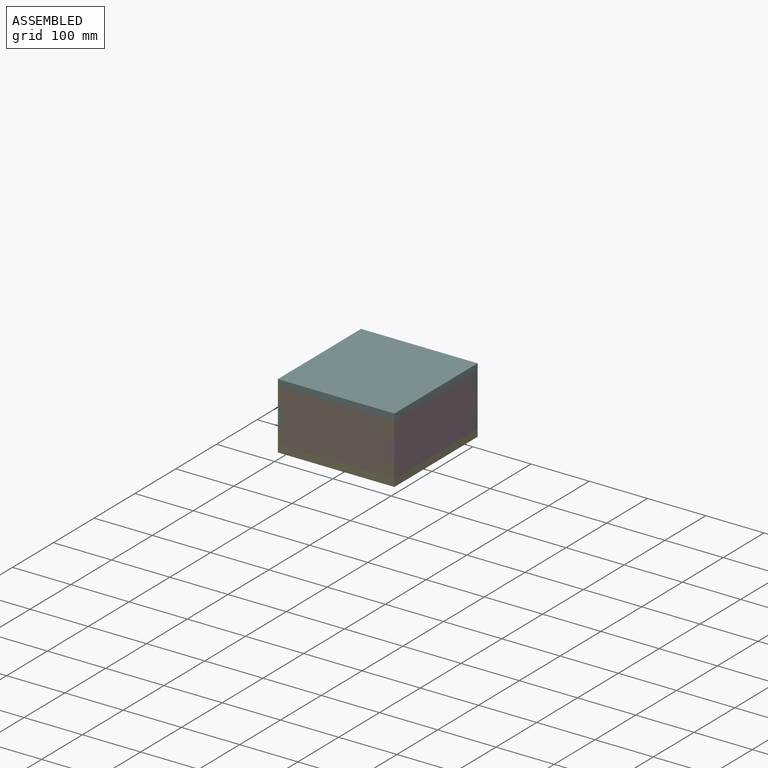
[diagram: assembled view]
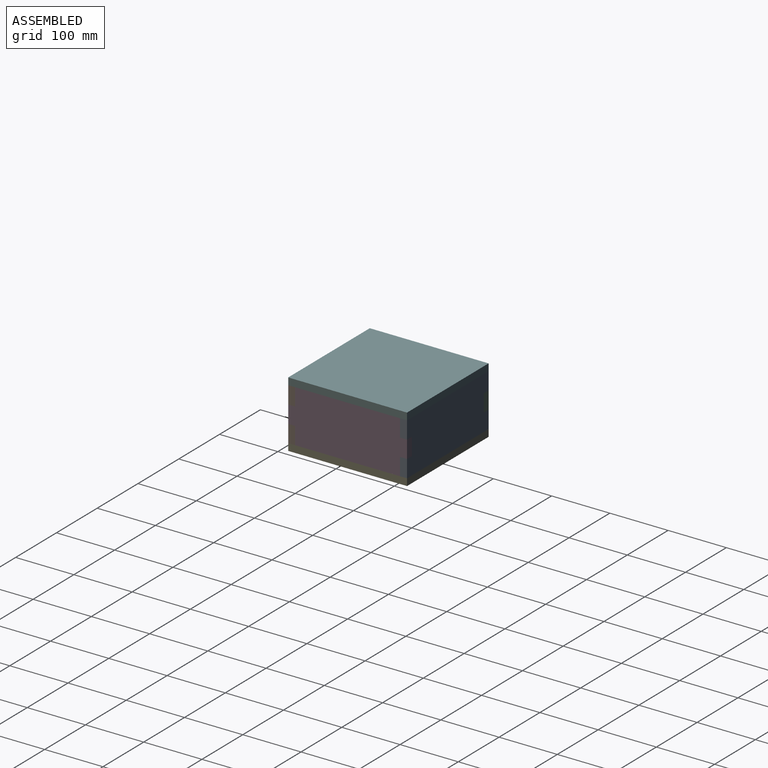
[diagram: assembled view, second angle]
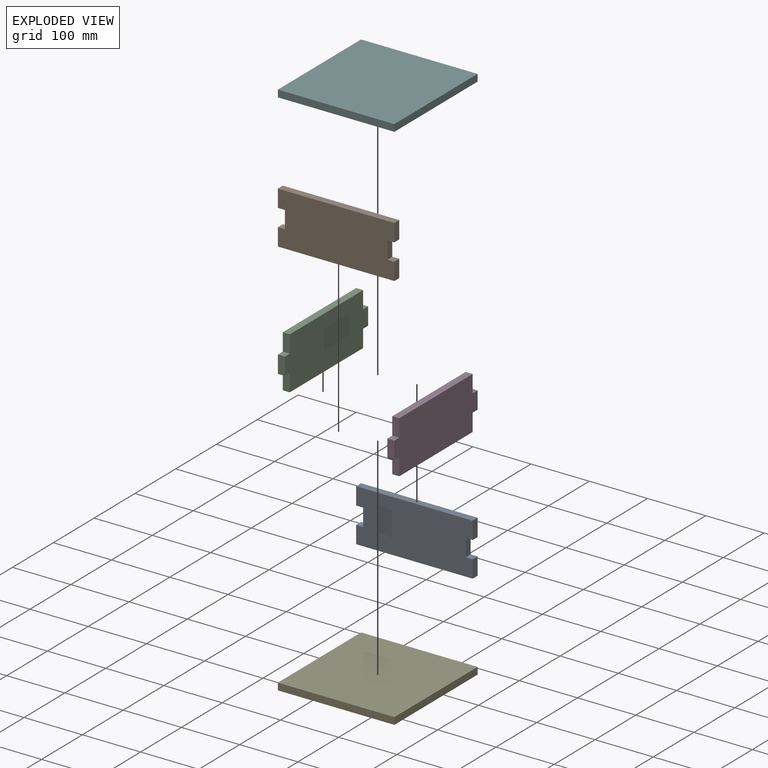
[diagram: exploded view]
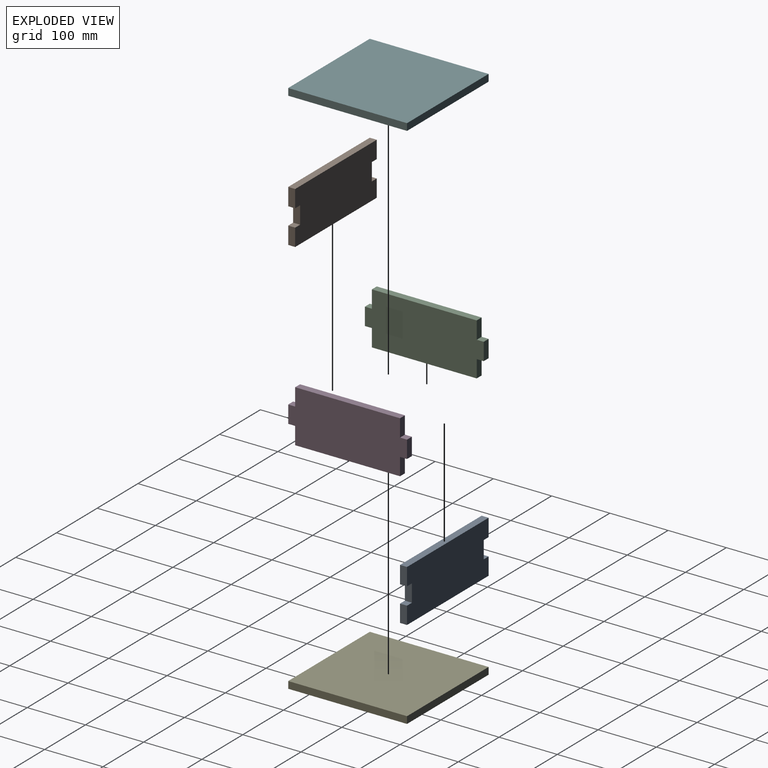
[diagram: exploded view, second angle]
ASSEMBLY  parts=6 mates=5
PART A: 14 faces, bbox 200x12x90 mm
  f0: plane 12x12mm, normal (0,0,1), area 144mm2, adj f1,f11,f12,f13
  f1: plane 30x12mm, normal (1,0,0), area 360mm2, adj f0,f2,f12,f13
  f2: plane 12x12mm, normal (0,0,-1), area 144mm2, adj f1,f3,f12,f13
  f3: plane 30x12mm, normal (1,0,0), area 360mm2, adj f2,f4,f12,f13
  f4: plane 200x12mm, normal (0,0,1), area 2400mm2, adj f3,f5,f12,f13
  f5: plane 30x12mm, normal (-1,0,0), area 360mm2, adj f4,f6,f12,f13
  f6: plane 12x12mm, normal (0,0,-1), area 144mm2, adj f5,f7,f12,f13
  f7: plane 30x12mm, normal (-1,0,0), area 360mm2, adj f6,f8,f12,f13
  f8: plane 12x12mm, normal (0,0,1), area 144mm2, adj f7,f9,f12,f13
  f9: plane 30x12mm, normal (-1,0,0), area 360mm2, adj f8,f10,f12,f13
  f10: plane 200x12mm, normal (0,0,-1), area 2400mm2, adj f9,f11,f12,f13
  f11: plane 30x12mm, normal (1,0,0), area 360mm2, adj f0,f10,f12,f13
  f12: plane 200x90mm, normal (0,-1,0), area 17280mm2, adj f0,f1,f2,f3,f4,f5,f6,f7
  f13: plane 200x90mm, normal (0,1,0), area 17280mm2, adj f0,f1,f2,f3,f4,f5,f6,f7
PART B: same geometry as A
PART C: 14 faces, bbox 12x204x90 mm
  f0: plane 180x12mm, normal (0,0,-1), area 2160mm2, adj f1,f11,f12,f13
  f1: plane 30x12mm, normal (0,1,0), area 360mm2, adj f0,f2,f12,f13
  f2: plane 12x12mm, normal (0,0,-1), area 144mm2, adj f1,f3,f12,f13
  f3: plane 30x12mm, normal (0,1,0), area 360mm2, adj f2,f4,f12,f13
  f4: plane 12x12mm, normal (0,0,1), area 144mm2, adj f3,f5,f12,f13
  f5: plane 30x12mm, normal (0,1,0), area 360mm2, adj f4,f6,f12,f13
  f6: plane 180x12mm, normal (0,0,1), area 2160mm2, adj f5,f7,f12,f13
  f7: plane 30x12mm, normal (0,-1,0), area 360mm2, adj f6,f8,f12,f13
  f8: plane 12x12mm, normal (0,0,1), area 144mm2, adj f7,f9,f12,f13
  f9: plane 30x12mm, normal (0,-1,0), area 360mm2, adj f8,f10,f12,f13
  f10: plane 12x12mm, normal (0,0,-1), area 144mm2, adj f9,f11,f12,f13
  f11: plane 30x12mm, normal (0,-1,0), area 360mm2, adj f0,f10,f12,f13
  f12: plane 204x90mm, normal (1,0,0), area 16920mm2, adj f0,f1,f2,f3,f4,f5,f6,f7
  f13: plane 204x90mm, normal (-1,0,0), area 16920mm2, adj f0,f1,f2,f3,f4,f5,f6,f7
PART D: same geometry as C
PART E: 6 faces, bbox 200x204x12 mm
  f0: plane 204x12mm, normal (-1,0,0), area 2448mm2, adj f1,f3,f4,f5
  f1: plane 200x12mm, normal (0,-1,0), area 2400mm2, adj f0,f2,f4,f5
  f2: plane 204x12mm, normal (1,0,0), area 2448mm2, adj f1,f3,f4,f5
  f3: plane 200x12mm, normal (0,1,0), area 2400mm2, adj f0,f2,f4,f5
  f4: plane 204x200mm, normal (0,0,1), area 40800mm2, adj f0,f1,f2,f3
  f5: plane 204x200mm, normal (0,0,-1), area 40800mm2, adj f0,f1,f2,f3
PART F: same geometry as E
PLACE A t=(-53.68,-25.53,-184.68)mm
PLACE B t=(-53.68,-217.53,-184.68)mm
PLACE C t=(-53.68,-217.53,-184.68)mm
PLACE D t=(134.32,-217.53,-184.68)mm
PLACE E t=(-53.68,-25.53,-196.68)mm
PLACE F t=(-53.68,-25.53,-94.68)mm
MATE fastened D.f13 <-> A.f1  axis (-1,0,0) through (134.32,-25.53,-154.68)mm
MATE fastened A.f4 <-> F.f5  axis (0,0,1) through (-53.68,-25.53,-94.68)mm
MATE fastened C.f2 <-> A.f8  axis (0,0,1) through (-41.68,-25.53,-154.68)mm
MATE fastened B.f0 <-> D.f10  axis (0,0,1) through (134.32,-229.53,-154.68)mm
MATE fastened E.f4 <-> A.f10  axis (0,0,1) through (-53.68,-25.53,-184.68)mm
